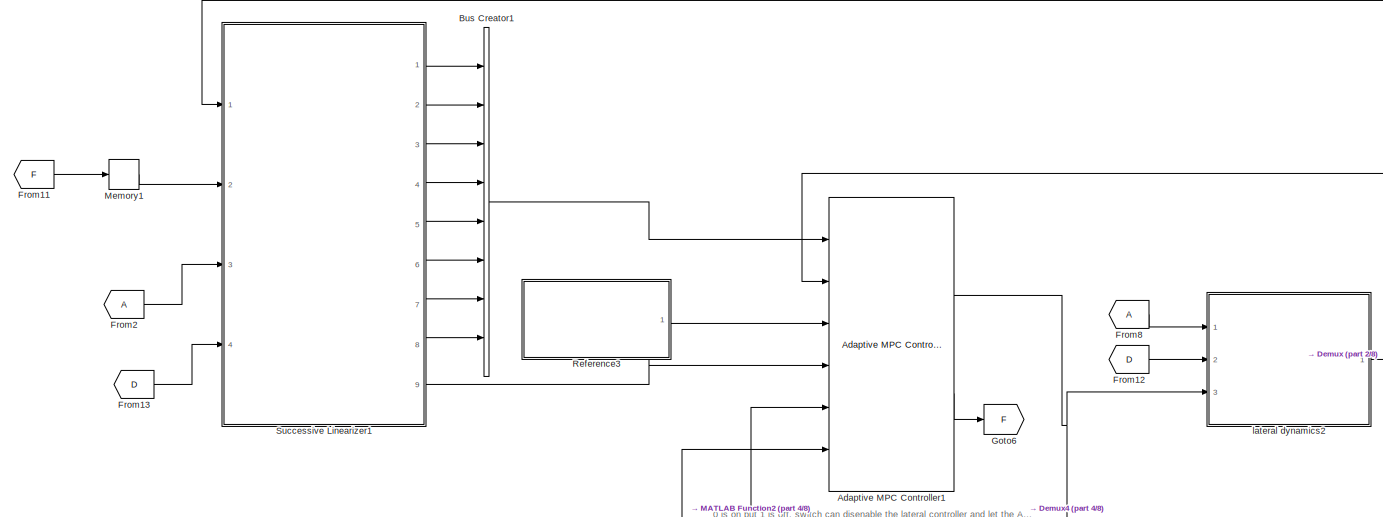
[diagram: root canvas - part 1/8, top left region]
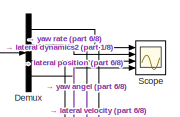
[diagram: root canvas - part 2/8, top center region]
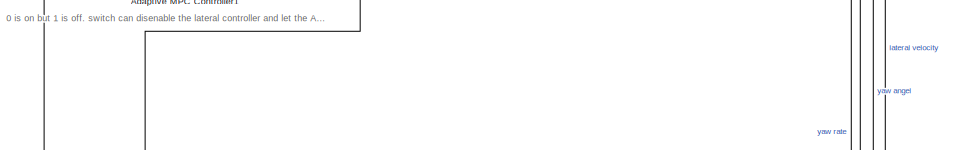
[diagram: root canvas - part 3/8, top center region]
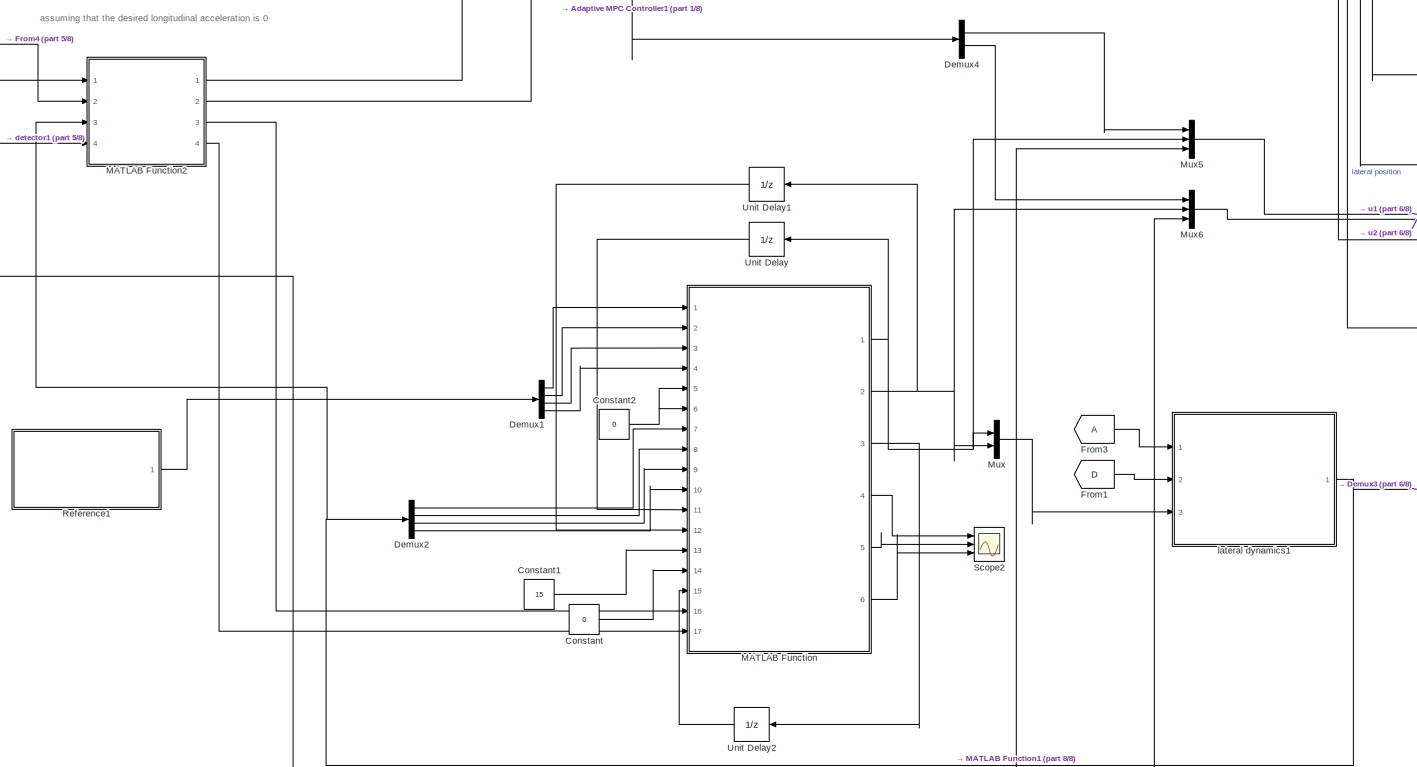
[diagram: root canvas - part 4/8, central region]
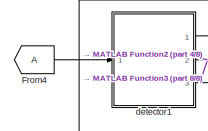
[diagram: root canvas - part 5/8, middle left region]
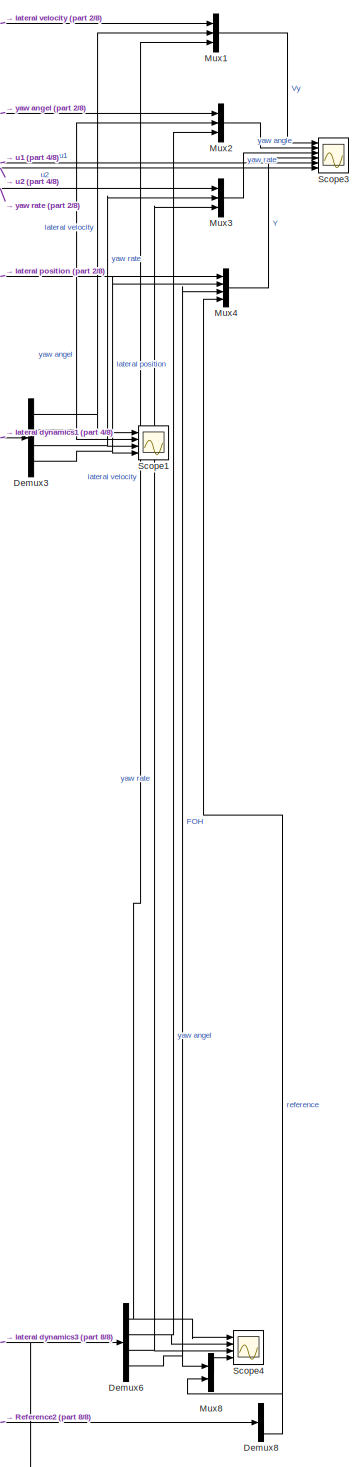
[diagram: root canvas - part 6/8, middle right region]
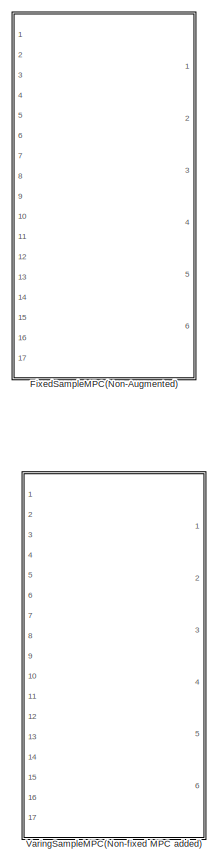
[diagram: root canvas - part 7/8, middle right region]
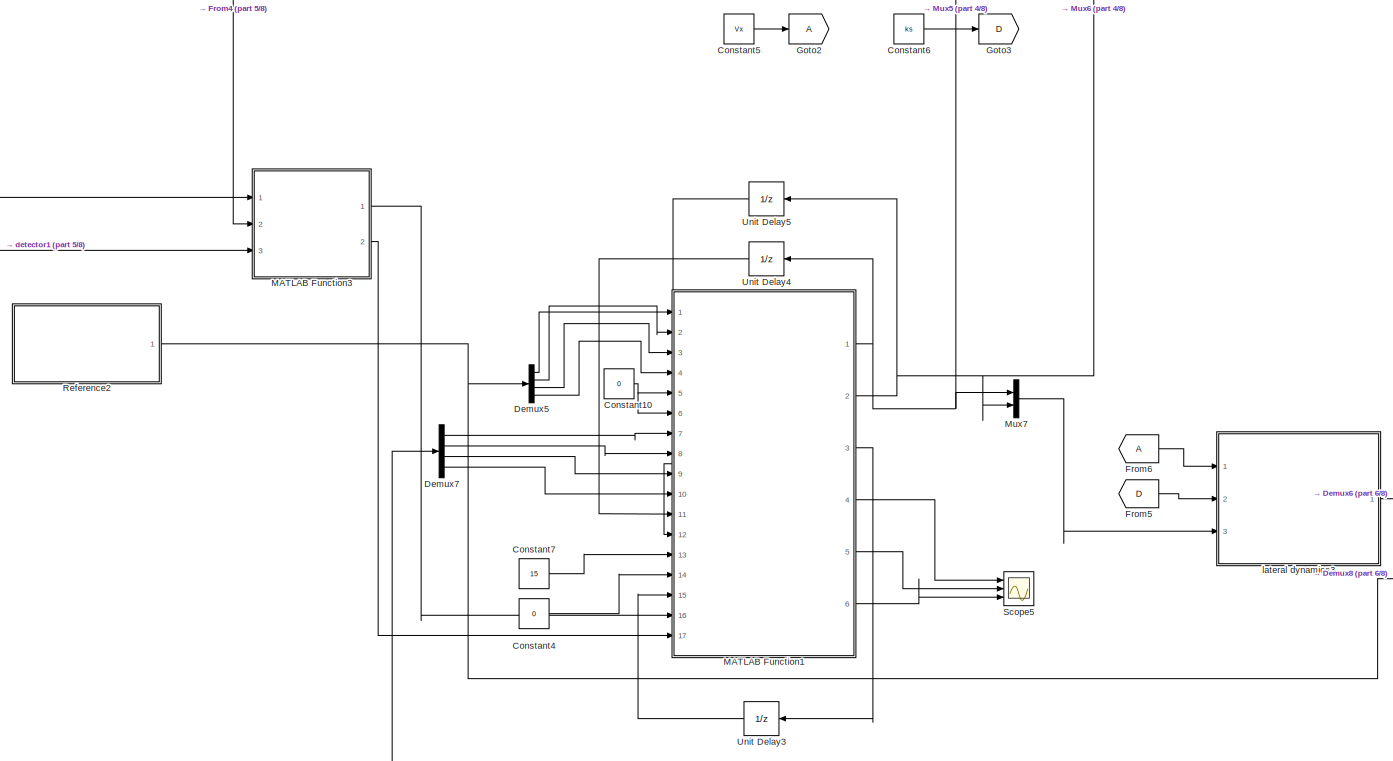
[diagram: root canvas - part 8/8, bottom center region]
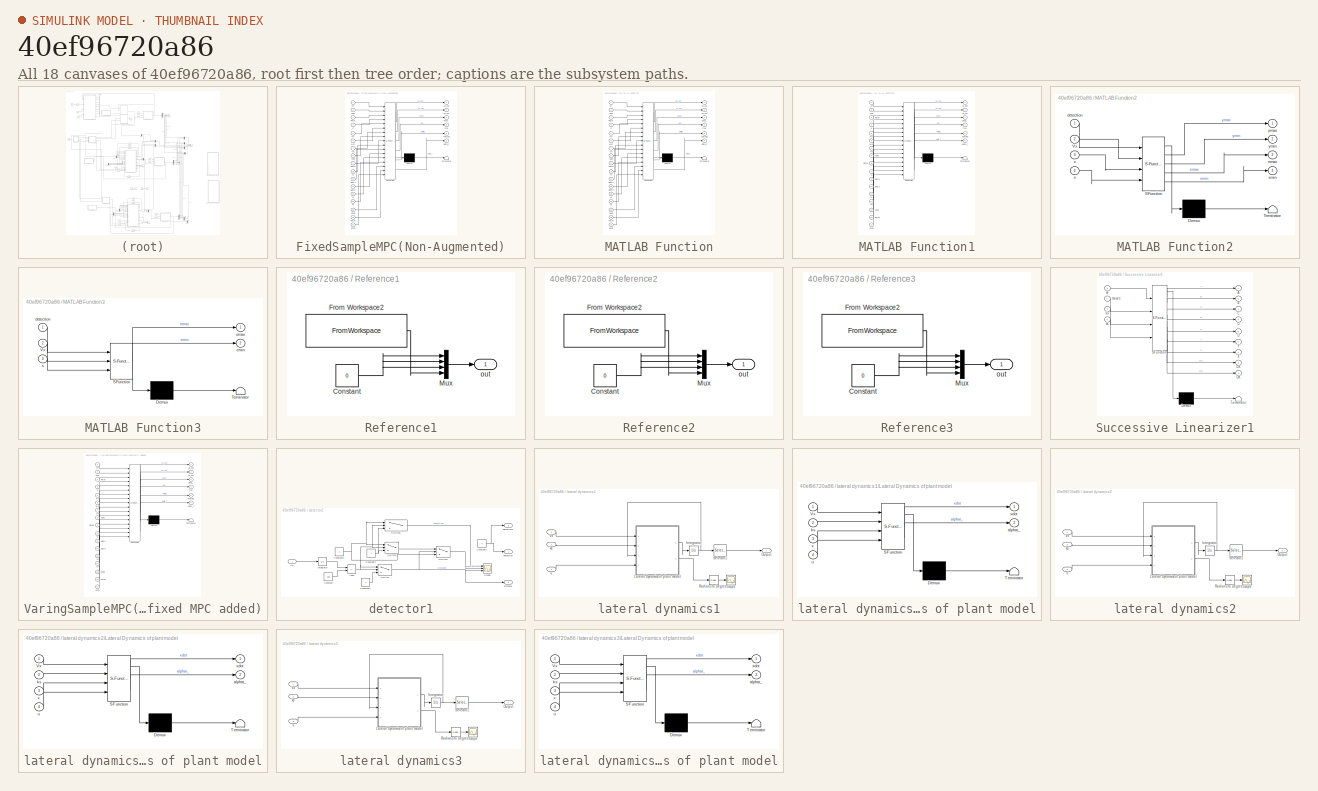
[diagram: thumbnail index - all 18 canvases of the model, root first then tree order]
MODEL slx_40ef96720a86
KIND model
CONFIG AbsTol = auto
CONFIG EnableMultiTasking = off
CONFIG FixedStep = auto
CONFIG MaxStep = auto
CONFIG MinStep = auto
CONFIG RelTol = 1e-3
CONFIG SampleTimeConstraint = Unconstrained
CONFIG SolverName = VariableStepAuto
CONFIG StartTime = 0.0
CONFIG StopTime = 20
BLOCK [Reference] Adaptive MPC Controller1  REF=mpclib/Adaptive MPC Controller  (lib defined in mdl_ae329e0e0455)
  Commented = on
  Ports = [6, 2]
  SCDEnableBlockLinearizationSpecification = on
  SourceBlock = mpclib/Adaptive MPC Controller
  SourceProductBaseCode = MP
  SourceType = Adaptive MPC
BLOCK [BusCreator] Bus Creator1
  Commented = on
  DisplayOption = bar
  InheritFromInputs = on
  Inputs = 8
  Ports = [8, 1]
BLOCK [Constant] Constant
  Value = 0
BLOCK [Constant] Constant1
  Value = 15
BLOCK [Constant] Constant10
  Value = 0
BLOCK [Constant] Constant2
  Value = 0
BLOCK [Constant] Constant4
  Value = 0
BLOCK [Constant] Constant5
  Value = Vx
BLOCK [Constant] Constant6
  Value = ks
BLOCK [Constant] Constant7
  Value = 15
BLOCK [Demux] Demux
  Commented = on
  Ports = [1, 4]
BLOCK [Demux] Demux1
  Ports = [1, 4]
BLOCK [Demux] Demux2
  Ports = [1, 4]
BLOCK [Demux] Demux3
  Ports = [1, 4]
BLOCK [Demux] Demux4
  Outputs = 2
  Ports = [1, 2]
BLOCK [Demux] Demux5
  Ports = [1, 4]
BLOCK [Demux] Demux6
  Ports = [1, 4]
BLOCK [Demux] Demux7
  Ports = [1, 4]
BLOCK [Demux] Demux8
  Ports = [1, 4]
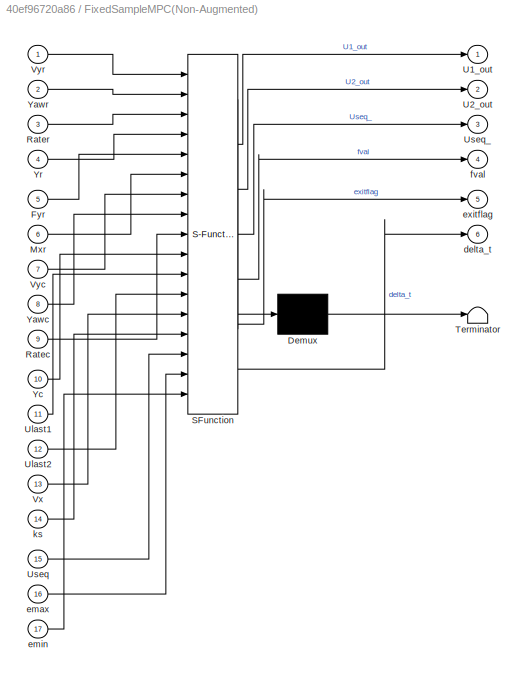
BLOCK [SubSystem] FixedSampleMPC(Non-Augmented)
  Commented = on
  ErrorFcn = Stateflow.Translate.translate
  PermitHierarchicalResolution = ExplicitOnly
  Ports = [17, 6]
  RequestExecContextInheritance = off
  SFBlockType = MATLAB Function
  TreatAsAtomicUnit = on
BLOCK [Demux] FixedSampleMPC(Non-Augmented)/ Demux 
  Outputs = 1
  Ports = [1, 1]
BLOCK [S-Function] FixedSampleMPC(Non-Augmented)/ SFunction 
  EnableBusSupport = on
  FunctionName = sf_sfun
  PortCounts = [17 7]
  Ports = [17, 7]
  SFcnIsStateOwnerBlock = off
  SFunctionDeploymentMode = off
  Tag = Stateflow S-Function 9
BLOCK [Terminator] FixedSampleMPC(Non-Augmented)/ Terminator 
BLOCK [Inport] FixedSampleMPC(Non-Augmented)/Fyr
  Port = 5
BLOCK [Inport] FixedSampleMPC(Non-Augmented)/Mxr
  Port = 6
BLOCK [Inport] FixedSampleMPC(Non-Augmented)/Ratec
  Port = 9
BLOCK [Inport] FixedSampleMPC(Non-Augmented)/Rater
  Port = 3
BLOCK [Outport] FixedSampleMPC(Non-Augmented)/U1_out
BLOCK [Outport] FixedSampleMPC(Non-Augmented)/U2_out
  Port = 2
BLOCK [Inport] FixedSampleMPC(Non-Augmented)/Ulast1
  Port = 11
BLOCK [Inport] FixedSampleMPC(Non-Augmented)/Ulast2
  Port = 12
BLOCK [Inport] FixedSampleMPC(Non-Augmented)/Useq
  Port = 15
BLOCK [Outport] FixedSampleMPC(Non-Augmented)/Useq_
  Port = 3
BLOCK [Inport] FixedSampleMPC(Non-Augmented)/Vx
  Port = 13
BLOCK [Inport] FixedSampleMPC(Non-Augmented)/Vyc
  Port = 7
BLOCK [Inport] FixedSampleMPC(Non-Augmented)/Vyr
BLOCK [Inport] FixedSampleMPC(Non-Augmented)/Yawc
  Port = 8
BLOCK [Inport] FixedSampleMPC(Non-Augmented)/Yawr
  Port = 2
BLOCK [Inport] FixedSampleMPC(Non-Augmented)/Yc
  Port = 10
BLOCK [Inport] FixedSampleMPC(Non-Augmented)/Yr
  Port = 4
BLOCK [Outport] FixedSampleMPC(Non-Augmented)/delta_t
  Port = 6
BLOCK [Inport] FixedSampleMPC(Non-Augmented)/emax
  Port = 16
BLOCK [Inport] FixedSampleMPC(Non-Augmented)/emin
  Port = 17
BLOCK [Outport] FixedSampleMPC(Non-Augmented)/exitflag
  Port = 5
BLOCK [Outport] FixedSampleMPC(Non-Augmented)/fval
  Port = 4
BLOCK [Inport] FixedSampleMPC(Non-Augmented)/ks
  Port = 14
BLOCK [From] From1
  GotoTag = D
BLOCK [From] From11
  Commented = on
  GotoTag = F
BLOCK [From] From12
  Commented = on
  GotoTag = D
BLOCK [From] From13
  Commented = on
  GotoTag = D
BLOCK [From] From2
  Commented = on
BLOCK [From] From3
BLOCK [From] From4
BLOCK [From] From5
  GotoTag = D
BLOCK [From] From6
BLOCK [From] From8
  Commented = on
BLOCK [Goto] Goto2
BLOCK [Goto] Goto3
  GotoTag = D
BLOCK [Goto] Goto6
  Commented = on
  GotoTag = F
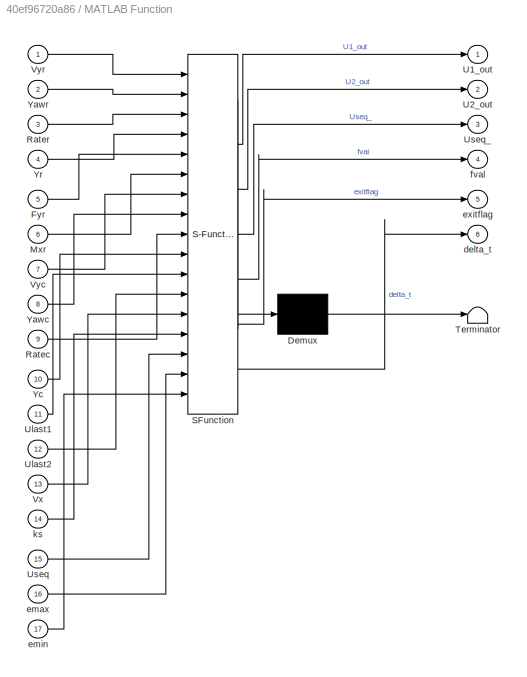
BLOCK [SubSystem] MATLAB Function
  ErrorFcn = Stateflow.Translate.translate
  PermitHierarchicalResolution = ExplicitOnly
  Ports = [17, 6]
  RequestExecContextInheritance = off
  SFBlockType = MATLAB Function
  TreatAsAtomicUnit = on
BLOCK [Demux] MATLAB Function/ Demux 
  Outputs = 1
  Ports = [1, 1]
BLOCK [S-Function] MATLAB Function/ SFunction 
  EnableBusSupport = on
  FunctionName = sf_sfun
  PortCounts = [17 7]
  Ports = [17, 7]
  SFcnIsStateOwnerBlock = off
  SFunctionDeploymentMode = off
  Tag = Stateflow S-Function 1
BLOCK [Terminator] MATLAB Function/ Terminator 
BLOCK [Inport] MATLAB Function/Fyr
  Port = 5
BLOCK [Inport] MATLAB Function/Mxr
  Port = 6
BLOCK [Inport] MATLAB Function/Ratec
  Port = 9
BLOCK [Inport] MATLAB Function/Rater
  Port = 3
BLOCK [Outport] MATLAB Function/U1_out
BLOCK [Outport] MATLAB Function/U2_out
  Port = 2
BLOCK [Inport] MATLAB Function/Ulast1
  Port = 11
BLOCK [Inport] MATLAB Function/Ulast2
  Port = 12
BLOCK [Inport] MATLAB Function/Useq
  Port = 15
BLOCK [Outport] MATLAB Function/Useq_
  Port = 3
BLOCK [Inport] MATLAB Function/Vx
  Port = 13
BLOCK [Inport] MATLAB Function/Vyc
  Port = 7
BLOCK [Inport] MATLAB Function/Vyr
BLOCK [Inport] MATLAB Function/Yawc
  Port = 8
BLOCK [Inport] MATLAB Function/Yawr
  Port = 2
BLOCK [Inport] MATLAB Function/Yc
  Port = 10
BLOCK [Inport] MATLAB Function/Yr
  Port = 4
BLOCK [Outport] MATLAB Function/delta_t
  Port = 6
BLOCK [Inport] MATLAB Function/emax
  Port = 16
BLOCK [Inport] MATLAB Function/emin
  Port = 17
BLOCK [Outport] MATLAB Function/exitflag
  Port = 5
BLOCK [Outport] MATLAB Function/fval
  Port = 4
BLOCK [Inport] MATLAB Function/ks
  Port = 14
BLOCK [SubSystem] MATLAB Function1
  ErrorFcn = Stateflow.Translate.translate
  PermitHierarchicalResolution = ExplicitOnly
  Ports = [17, 6]
  RequestExecContextInheritance = off
  SFBlockType = MATLAB Function
  TreatAsAtomicUnit = on
BLOCK [Demux] MATLAB Function1/ Demux 
  Outputs = 1
  Ports = [1, 1]
BLOCK [S-Function] MATLAB Function1/ SFunction 
  EnableBusSupport = on
  FunctionName = sf_sfun
  PortCounts = [17 7]
  Ports = [17, 7]
  SFcnIsStateOwnerBlock = off
  SFunctionDeploymentMode = off
  Tag = Stateflow S-Function 4
BLOCK [Terminator] MATLAB Function1/ Terminator 
BLOCK [Inport] MATLAB Function1/Fyr
  Port = 5
BLOCK [Inport] MATLAB Function1/Mxr
  Port = 6
BLOCK [Inport] MATLAB Function1/Ratec
  Port = 9
BLOCK [Inport] MATLAB Function1/Rater
  Port = 3
BLOCK [Outport] MATLAB Function1/U1_out
BLOCK [Outport] MATLAB Function1/U2_out
  Port = 2
BLOCK [Inport] MATLAB Function1/Ulast1
  Port = 11
BLOCK [Inport] MATLAB Function1/Ulast2
  Port = 12
BLOCK [Inport] MATLAB Function1/Useq
  Port = 15
BLOCK [Outport] MATLAB Function1/Useq_
  Port = 3
BLOCK [Inport] MATLAB Function1/Vx
  Port = 13
BLOCK [Inport] MATLAB Function1/Vyc
  Port = 7
BLOCK [Inport] MATLAB Function1/Vyr
BLOCK [Inport] MATLAB Function1/Yawc
  Port = 8
BLOCK [Inport] MATLAB Function1/Yawr
  Port = 2
BLOCK [Inport] MATLAB Function1/Yc
  Port = 10
BLOCK [Inport] MATLAB Function1/Yr
  Port = 4
BLOCK [Outport] MATLAB Function1/delta_t
  Port = 6
BLOCK [Inport] MATLAB Function1/emax
  Port = 16
BLOCK [Inport] MATLAB Function1/emin
  Port = 17
BLOCK [Outport] MATLAB Function1/exitflag
  Port = 5
BLOCK [Outport] MATLAB Function1/fval
  Port = 4
BLOCK [Inport] MATLAB Function1/ks
  Port = 14
BLOCK [SubSystem] MATLAB Function2
  ErrorFcn = Stateflow.Translate.translate
  PermitHierarchicalResolution = ExplicitOnly
  Ports = [4, 4]
  RequestExecContextInheritance = off
  SFBlockType = MATLAB Function
  TreatAsAtomicUnit = on
BLOCK [Demux] MATLAB Function2/ Demux 
  Outputs = 1
  Ports = [1, 1]
BLOCK [S-Function] MATLAB Function2/ SFunction 
  EnableBusSupport = on
  FunctionName = sf_sfun
  Parameters = PredictionHorizon,Ts
  PortCounts = [4 5]
  Ports = [4, 5]
  SFcnIsStateOwnerBlock = off
  SFunctionDeploymentMode = off
  Tag = Stateflow S-Function 2
BLOCK [Terminator] MATLAB Function2/ Terminator 
BLOCK [Inport] MATLAB Function2/Vx
  Port = 2
BLOCK [Inport] MATLAB Function2/detection
BLOCK [Outport] MATLAB Function2/emax
  Port = 3
BLOCK [Outport] MATLAB Function2/emin
  Port = 4
BLOCK [Inport] MATLAB Function2/s
  Port = 4
BLOCK [Inport] MATLAB Function2/x
  Port = 3
BLOCK [Outport] MATLAB Function2/ymax
BLOCK [Outport] MATLAB Function2/ymin
  Port = 2
BLOCK [SubSystem] MATLAB Function3
  ErrorFcn = Stateflow.Translate.translate
  PermitHierarchicalResolution = ExplicitOnly
  Ports = [3, 2]
  RequestExecContextInheritance = off
  SFBlockType = MATLAB Function
  TreatAsAtomicUnit = on
BLOCK [Demux] MATLAB Function3/ Demux 
  Outputs = 1
  Ports = [1, 1]
BLOCK [S-Function] MATLAB Function3/ SFunction 
  EnableBusSupport = on
  FunctionName = sf_sfun
  PortCounts = [3 3]
  Ports = [3, 3]
  SFcnIsStateOwnerBlock = off
  SFunctionDeploymentMode = off
  Tag = Stateflow S-Function 10
BLOCK [Terminator] MATLAB Function3/ Terminator 
BLOCK [Inport] MATLAB Function3/Vx
  Port = 2
BLOCK [Inport] MATLAB Function3/detection
BLOCK [Outport] MATLAB Function3/emax
BLOCK [Outport] MATLAB Function3/emin
  Port = 2
BLOCK [Inport] MATLAB Function3/s
  Port = 3
BLOCK [Memory] Memory1
  Commented = on
BLOCK [Mux] Mux
  DisplayOption = bar
  Inputs = 2
  Ports = [2, 1]
BLOCK [Mux] Mux1
  DisplayOption = bar
  Inputs = 3
  Ports = [3, 1]
BLOCK [Mux] Mux2
  DisplayOption = bar
  Inputs = 3
  Ports = [3, 1]
BLOCK [Mux] Mux3
  DisplayOption = bar
  Inputs = 3
  Ports = [3, 1]
BLOCK [Mux] Mux4
  DisplayOption = bar
  Ports = [4, 1]
BLOCK [Mux] Mux5
  DisplayOption = bar
  Inputs = 3
  Ports = [3, 1]
BLOCK [Mux] Mux6
  DisplayOption = bar
  Inputs = 3
  Ports = [3, 1]
BLOCK [Mux] Mux7
  DisplayOption = bar
  Inputs = 2
  Ports = [2, 1]
BLOCK [Mux] Mux8
  DisplayOption = bar
  Inputs = 2
  Ports = [2, 1]
BLOCK [SubSystem] Reference1
  AncestorBlock = Meldas_library/Reference
  Ports = [0, 1]
  RequestExecContextInheritance = off
BLOCK [Constant] Reference1/Constant
  Value = 0
BLOCK [FromWorkspace] Reference1/From Workspace2
  SampleTime = 0.1
  VariableName = [t', posRef(:,2)]
BLOCK [Mux] Reference1/Mux
  DisplayOption = bar
  Ports = [4, 1]
BLOCK [Outport] Reference1/out
  VectorParamsAs1DForOutWhenUnconnected = off
BLOCK [SubSystem] Reference2
  AncestorBlock = Meldas_library/Reference
  Ports = [0, 1]
  RequestExecContextInheritance = off
BLOCK [Constant] Reference2/Constant
  Value = 0
BLOCK [FromWorkspace] Reference2/From Workspace2
  SampleTime = 0.1
  VariableName = [t', posRef(:,2)]
BLOCK [Mux] Reference2/Mux
  DisplayOption = bar
  Ports = [4, 1]
BLOCK [Outport] Reference2/out
  VectorParamsAs1DForOutWhenUnconnected = off
BLOCK [SubSystem] Reference3
  AncestorBlock = Meldas_library/Reference
  Commented = on
  Ports = [0, 1]
  RequestExecContextInheritance = off
BLOCK [Constant] Reference3/Constant
  Value = 0
BLOCK [FromWorkspace] Reference3/From Workspace2
  SampleTime = 0.1
  VariableName = [t', posRef(:,2)]
BLOCK [Mux] Reference3/Mux
  DisplayOption = bar
  Ports = [4, 1]
BLOCK [Outport] Reference3/out
  VectorParamsAs1DForOutWhenUnconnected = off
BLOCK [Scope] Scope
  Commented = on
  Floating = off
  NumInputPorts = 4
  Ports = [4]
  ScopeSpecificationString = Simulink.scopes.TimeScopeBlockCfg('CurrentConfiguration', extmgr.ConfigurationSet(extmgr.Configuration('Core','General UI',true),extmgr.Configuration('Core','Source UI',true),extmgr.Configuration('Sources','WiredSimulink',true),extmgr.Configuration('Visuals','Time Domain',true,'SerializedDisplays',{struct('MinYLimReal','-0.00383','MaxYLimReal','0.00479','YLabelReal','','MinYLimMag','0.00000','MaxY...<+3440ch>
BLOCK [Scope] Scope1
  Floating = off
  NumInputPorts = 4
  Ports = [4]
  ScopeSpecificationString = Simulink.scopes.TimeScopeBlockCfg('CurrentConfiguration', extmgr.ConfigurationSet(extmgr.Configuration('Core','General UI',true),extmgr.Configuration('Core','Source UI',true),extmgr.Configuration('Sources','WiredSimulink',true,'DataLoggingVariableName','ScopeData1'),extmgr.Configuration('Visuals','Time Domain',true,'SerializedDisplays',{struct('MinYLimReal','-0.01164','MaxYLimReal','0.01519','YLab...<+3476ch>
BLOCK [Scope] Scope2
  Floating = off
  NumInputPorts = 3
  Ports = [3]
  ScopeSpecificationString = Simulink.scopes.TimeScopeBlockCfg('CurrentConfiguration', extmgr.ConfigurationSet(extmgr.Configuration('Core','General UI',true),extmgr.Configuration('Core','Source UI',true),extmgr.Configuration('Sources','WiredSimulink',true,'DataLoggingVariableName','ScopeData2'),extmgr.Configuration('Visuals','Time Domain',true,'SerializedDisplays',{struct('MinYLimReal','-0.17216','MaxYLimReal','0.01913','YLab...<+2788ch>
BLOCK [Scope] Scope3
  Floating = off
  NumInputPorts = 6
  Ports = [6]
  ScopeSpecificationString = Simulink.scopes.TimeScopeBlockCfg('CurrentConfiguration', extmgr.ConfigurationSet(extmgr.Configuration('Core','General UI',true),extmgr.Configuration('Core','Source UI',true),extmgr.Configuration('Sources','WiredSimulink',true,'DataLoggingVariableName','ScopeData3'),extmgr.Configuration('Visuals','Time Domain',true,'SerializedDisplays',{struct('MinYLimReal','-0.01164','MaxYLimReal','0.01519','YLab...<+5747ch>
BLOCK [Scope] Scope4
  Floating = off
  NumInputPorts = 4
  Ports = [4]
  ScopeSpecificationString = Simulink.scopes.TimeScopeBlockCfg('CurrentConfiguration', extmgr.ConfigurationSet(extmgr.Configuration('Core','General UI',true),extmgr.Configuration('Core','Source UI',true),extmgr.Configuration('Sources','WiredSimulink',true,'DataLoggingVariableName','ScopeData1'),extmgr.Configuration('Visuals','Time Domain',true,'SerializedDisplays',{struct('MinYLimReal','-0.00694','MaxYLimReal','0.01075','YLab...<+3448ch>
BLOCK [Scope] Scope5
  Floating = off
  NumInputPorts = 3
  Ports = [3]
  ScopeSpecificationString = Simulink.scopes.TimeScopeBlockCfg('CurrentConfiguration', extmgr.ConfigurationSet(extmgr.Configuration('Core','General UI',true),extmgr.Configuration('Core','Source UI',true),extmgr.Configuration('Sources','WiredSimulink',true,'DataLoggingVariableName','ScopeData2'),extmgr.Configuration('Visuals','Time Domain',true,'SerializedDisplays',{struct('MinYLimReal','-0.94011','MaxYLimReal','0.10446','YLab...<+2790ch>
BLOCK [SubSystem] Successive Linearizer1
  Commented = on
  ErrorFcn = Stateflow.Translate.translate
  PermitHierarchicalResolution = ExplicitOnly
  Ports = [4, 9]
  RequestExecContextInheritance = off
  SFBlockType = MATLAB Function
  TreatAsAtomicUnit = on
BLOCK [Demux] Successive Linearizer1/ Demux 
  Outputs = 1
  Ports = [1, 1]
BLOCK [S-Function] Successive Linearizer1/ SFunction 
  EnableBusSupport = on
  FunctionName = sf_sfun
  Parameters = PredictionHorizon,Ts
  PortCounts = [4 10]
  Ports = [4, 10]
  SFcnIsStateOwnerBlock = off
  SFunctionDeploymentMode = off
  Tag = Stateflow S-Function 5
BLOCK [Terminator] Successive Linearizer1/ Terminator 
BLOCK [Outport] Successive Linearizer1/A
BLOCK [Outport] Successive Linearizer1/B
  Port = 2
BLOCK [Outport] Successive Linearizer1/C
  Port = 3
BLOCK [Outport] Successive Linearizer1/D
  Port = 4
BLOCK [Outport] Successive Linearizer1/DK
  Port = 9
BLOCK [Outport] Successive Linearizer1/DX
  Port = 8
BLOCK [Outport] Successive Linearizer1/U
  Port = 5
BLOCK [Inport] Successive Linearizer1/Vx
  Port = 3
BLOCK [Outport] Successive Linearizer1/X
  Port = 7
BLOCK [Outport] Successive Linearizer1/Y
  Port = 6
BLOCK [Inport] Successive Linearizer1/ks
  Port = 4
BLOCK [Inport] Successive Linearizer1/moves
  Port = 2
BLOCK [Inport] Successive Linearizer1/xk
BLOCK [UnitDelay] Unit Delay
  HasFrameUpgradeWarning = on
  SampleTime = -1
BLOCK [UnitDelay] Unit Delay1
  HasFrameUpgradeWarning = on
  SampleTime = -1
BLOCK [UnitDelay] Unit Delay2
  HasFrameUpgradeWarning = on
  InitialCondition = zeros(61,2)
  SampleTime = -1
BLOCK [UnitDelay] Unit Delay3
  HasFrameUpgradeWarning = on
  InitialCondition = zeros(71,2)
  SampleTime = -1
BLOCK [UnitDelay] Unit Delay4
  HasFrameUpgradeWarning = on
  SampleTime = -1
BLOCK [UnitDelay] Unit Delay5
  HasFrameUpgradeWarning = on
  SampleTime = -1
BLOCK [SubSystem] VaringSampleMPC(Non-fixed MPC added)
  Commented = on
  ErrorFcn = Stateflow.Translate.translate
  PermitHierarchicalResolution = ExplicitOnly
  Ports = [17, 6]
  RequestExecContextInheritance = off
  SFBlockType = MATLAB Function
  TreatAsAtomicUnit = on
BLOCK [Demux] VaringSampleMPC(Non-fixed MPC added)/ Demux 
  Outputs = 1
  Ports = [1, 1]
BLOCK [S-Function] VaringSampleMPC(Non-fixed MPC added)/ SFunction 
  EnableBusSupport = on
  FunctionName = sf_sfun
  PortCounts = [17 7]
  Ports = [17, 7]
  SFcnIsStateOwnerBlock = off
  SFunctionDeploymentMode = off
  Tag = Stateflow S-Function 8
BLOCK [Terminator] VaringSampleMPC(Non-fixed MPC added)/ Terminator 
BLOCK [Inport] VaringSampleMPC(Non-fixed MPC added)/Fyr
  Port = 5
BLOCK [Inport] VaringSampleMPC(Non-fixed MPC added)/Mxr
  Port = 6
BLOCK [Inport] VaringSampleMPC(Non-fixed MPC added)/Ratec
  Port = 9
BLOCK [Inport] VaringSampleMPC(Non-fixed MPC added)/Rater
  Port = 3
BLOCK [Outport] VaringSampleMPC(Non-fixed MPC added)/U1_out
BLOCK [Outport] VaringSampleMPC(Non-fixed MPC added)/U2_out
  Port = 2
BLOCK [Inport] VaringSampleMPC(Non-fixed MPC added)/Ulast1
  Port = 11
BLOCK [Inport] VaringSampleMPC(Non-fixed MPC added)/Ulast2
  Port = 12
BLOCK [Inport] VaringSampleMPC(Non-fixed MPC added)/Useq
  Port = 15
BLOCK [Outport] VaringSampleMPC(Non-fixed MPC added)/Useq_
  Port = 3
BLOCK [Inport] VaringSampleMPC(Non-fixed MPC added)/Vx
  Port = 13
BLOCK [Inport] VaringSampleMPC(Non-fixed MPC added)/Vyc
  Port = 7
BLOCK [Inport] VaringSampleMPC(Non-fixed MPC added)/Vyr
BLOCK [Inport] VaringSampleMPC(Non-fixed MPC added)/Yawc
  Port = 8
BLOCK [Inport] VaringSampleMPC(Non-fixed MPC added)/Yawr
  Port = 2
BLOCK [Inport] VaringSampleMPC(Non-fixed MPC added)/Yc
  Port = 10
BLOCK [Inport] VaringSampleMPC(Non-fixed MPC added)/Yr
  Port = 4
BLOCK [Outport] VaringSampleMPC(Non-fixed MPC added)/delta_t
  Port = 6
BLOCK [Inport] VaringSampleMPC(Non-fixed MPC added)/emax
  Port = 16
BLOCK [Inport] VaringSampleMPC(Non-fixed MPC added)/emin
  Port = 17
BLOCK [Outport] VaringSampleMPC(Non-fixed MPC added)/exitflag
  Port = 5
BLOCK [Outport] VaringSampleMPC(Non-fixed MPC added)/fval
  Port = 4
BLOCK [Inport] VaringSampleMPC(Non-fixed MPC added)/ks
  Port = 14
BLOCK [SubSystem] detector1
  Ports = [1, 3]
  RequestExecContextInheritance = off
BLOCK [Sum] detector1/Add1
  IconShape = rectangular
  Inputs = -+
  Ports = [2, 1]
BLOCK [Constant] detector1/Constant
  Value = 105
BLOCK [Constant] detector1/Constant1
  Value = 0
BLOCK [Constant] detector1/Constant2
  Value = -1
BLOCK [Constant] detector1/Constant4
  Value = 0
BLOCK [Constant] detector1/Constant7
BLOCK [Integrator] detector1/Integrator
  Ports = [1, 1]
BLOCK [Scope] detector1/Scope
  Floating = off
  NumInputPorts = 3
  Ports = [3]
  ScopeSpecificationString = Simulink.scopes.TimeScopeBlockCfg('CurrentConfiguration', extmgr.ConfigurationSet(extmgr.Configuration('Core','General UI',true),extmgr.Configuration('Core','Source UI',true),extmgr.Configuration('Sources','WiredSimulink',true),extmgr.Configuration('Visuals','Time Domain',true,'SerializedDisplays',{struct('MinYLimReal','-0.125','MaxYLimReal','1.125','YLabelReal','','MinYLimMag','0.00000','MaxYLimM...<+1985ch>
BLOCK [Switch] detector1/Switch
  Criteria = u2 > Threshold
  InputSameDT = off
  SaturateOnIntegerOverflow = off
BLOCK [Switch] detector1/Switch1
  Criteria = u2 > Threshold
  InputSameDT = off
  SaturateOnIntegerOverflow = off
  Threshold = 45
BLOCK [Switch] detector1/Switch2
  Criteria = u2 > Threshold
  InputSameDT = off
  SaturateOnIntegerOverflow = off
BLOCK [Switch] detector1/Switch3
  Criteria = u2 > Threshold
  InputSameDT = off
  SaturateOnIntegerOverflow = off
  Threshold = 81.75
BLOCK [Inport] detector1/Vx
BLOCK [Outport] detector1/detection
BLOCK [Outport] detector1/detection1
  Port = 3
BLOCK [Outport] detector1/distance
  Port = 2
BLOCK [SubSystem] lateral dynamics1
  Ports = [3, 1]
  RequestExecContextInheritance = off
BLOCK [Integrator] lateral dynamics1/Integrator
  Ports = [1, 1]
BLOCK [SubSystem] lateral dynamics1/Lateral Dynamics of plant model
  ErrorFcn = Stateflow.Translate.translate
  PermitHierarchicalResolution = ExplicitOnly
  Ports = [4, 2]
  RequestExecContextInheritance = off
  SFBlockType = MATLAB Function
  TreatAsAtomicUnit = on
BLOCK [Demux] lateral dynamics1/Lateral Dynamics of plant model/ Demux 
  Outputs = 1
  Ports = [1, 1]
BLOCK [S-Function] lateral dynamics1/Lateral Dynamics of plant model/ SFunction 
  EnableBusSupport = on
  FunctionName = sf_sfun
  PortCounts = [4 3]
  Ports = [4, 3]
  SFcnIsStateOwnerBlock = off
  SFunctionDeploymentMode = off
  Tag = Stateflow S-Function 3
BLOCK [Terminator] lateral dynamics1/Lateral Dynamics of plant model/ Terminator 
BLOCK [Inport] lateral dynamics1/Lateral Dynamics of plant model/Vx
BLOCK [Outport] lateral dynamics1/Lateral Dynamics of plant model/alphar_
  Port = 2
BLOCK [Inport] lateral dynamics1/Lateral Dynamics of plant model/ks
  Port = 2
BLOCK [Inport] lateral dynamics1/Lateral Dynamics of plant model/u
  Port = 4
BLOCK [Inport] lateral dynamics1/Lateral Dynamics of plant model/x
  Port = 3
BLOCK [Outport] lateral dynamics1/Lateral Dynamics of plant model/xdot
BLOCK [Outport] lateral dynamics1/Output
BLOCK [Reference] lateral dynamics1/Radians to Degrees  REF=simulink_extras/Transformations/Radians
to Degrees
  Ports = [1, 1]
  SourceBlock = simulink_extras/Transformations/Radians\nto Degrees
  SourceProductBaseCode = SL
  SourceType = RadiansToDegrees
BLOCK [Scope] lateral dynamics1/Scope
  Floating = off
  NumInputPorts = 1
  Ports = [1]
  ScopeSpecificationString = Simulink.scopes.TimeScopeBlockCfg('CurrentConfiguration', extmgr.ConfigurationSet(extmgr.Configuration('Core','General UI',true),extmgr.Configuration('Core','Source UI',true),extmgr.Configuration('Sources','WiredSimulink',true,'DataLoggingVariableName','ScopeData1'),extmgr.Configuration('Visuals','Time Domain',true,'SerializedDisplays',{struct('MinYLimReal','-0.89178','MaxYLimReal','0.67452','YLab...<+1377ch>  <repeated x3 — deduplicated; at blocks: Scope>
BLOCK [Selector] lateral dynamics1/Selector1
  IndexOptions = Index vector (dialog)
  Indices = [1 2 3 4]
  InputPortWidth = 4
  OutputSizes = 1
  Ports = [1, 1]
BLOCK [Inport] lateral dynamics1/Vx
BLOCK [Inport] lateral dynamics1/ks
  Port = 2
BLOCK [Inport] lateral dynamics1/u
  Port = 3
BLOCK [SubSystem] lateral dynamics2
  Commented = on
  Ports = [3, 1]
  RequestExecContextInheritance = off
BLOCK [Integrator] lateral dynamics2/Integrator
  Ports = [1, 1]
BLOCK [SubSystem] lateral dynamics2/Lateral Dynamics of plant model
  ErrorFcn = Stateflow.Translate.translate
  PermitHierarchicalResolution = ExplicitOnly
  Ports = [4, 2]
  RequestExecContextInheritance = off
  SFBlockType = MATLAB Function
  TreatAsAtomicUnit = on
BLOCK [Demux] lateral dynamics2/Lateral Dynamics of plant model/ Demux 
  Outputs = 1
  Ports = [1, 1]
BLOCK [S-Function] lateral dynamics2/Lateral Dynamics of plant model/ SFunction 
  EnableBusSupport = on
  FunctionName = sf_sfun
  PortCounts = [4 3]
  Ports = [4, 3]
  SFcnIsStateOwnerBlock = off
  SFunctionDeploymentMode = off
  Tag = Stateflow S-Function 6
BLOCK [Terminator] lateral dynamics2/Lateral Dynamics of plant model/ Terminator 
BLOCK [Inport] lateral dynamics2/Lateral Dynamics of plant model/Vx
BLOCK [Outport] lateral dynamics2/Lateral Dynamics of plant model/alphar_
  Port = 2
BLOCK [Inport] lateral dynamics2/Lateral Dynamics of plant model/ks
  Port = 2
BLOCK [Inport] lateral dynamics2/Lateral Dynamics of plant model/u
  Port = 4
BLOCK [Inport] lateral dynamics2/Lateral Dynamics of plant model/x
  Port = 3
BLOCK [Outport] lateral dynamics2/Lateral Dynamics of plant model/xdot
BLOCK [Outport] lateral dynamics2/Output
BLOCK [Reference] lateral dynamics2/Radians to Degrees  REF=simulink_extras/Transformations/Radians
to Degrees
  Ports = [1, 1]
  SourceBlock = simulink_extras/Transformations/Radians\nto Degrees
  SourceProductBaseCode = SL
  SourceType = RadiansToDegrees
BLOCK [Scope] lateral dynamics2/Scope
  Floating = off
  NumInputPorts = 1
  Ports = [1]
BLOCK [Selector] lateral dynamics2/Selector1
  IndexOptions = Index vector (dialog)
  Indices = [1 2 3 4]
  InputPortWidth = 4
  OutputSizes = 1
  Ports = [1, 1]
BLOCK [Inport] lateral dynamics2/Vx
BLOCK [Inport] lateral dynamics2/ks
  Port = 2
BLOCK [Inport] lateral dynamics2/u
  Port = 3
BLOCK [SubSystem] lateral dynamics3
  Ports = [3, 1]
  RequestExecContextInheritance = off
BLOCK [Integrator] lateral dynamics3/Integrator
  Ports = [1, 1]
BLOCK [SubSystem] lateral dynamics3/Lateral Dynamics of plant model
  ErrorFcn = Stateflow.Translate.translate
  PermitHierarchicalResolution = ExplicitOnly
  Ports = [4, 2]
  RequestExecContextInheritance = off
  SFBlockType = MATLAB Function
  TreatAsAtomicUnit = on
BLOCK [Demux] lateral dynamics3/Lateral Dynamics of plant model/ Demux 
  Outputs = 1
  Ports = [1, 1]
BLOCK [S-Function] lateral dynamics3/Lateral Dynamics of plant model/ SFunction 
  EnableBusSupport = on
  FunctionName = sf_sfun
  PortCounts = [4 3]
  Ports = [4, 3]
  SFcnIsStateOwnerBlock = off
  SFunctionDeploymentMode = off
  Tag = Stateflow S-Function 7
BLOCK [Terminator] lateral dynamics3/Lateral Dynamics of plant model/ Terminator 
BLOCK [Inport] lateral dynamics3/Lateral Dynamics of plant model/Vx
BLOCK [Outport] lateral dynamics3/Lateral Dynamics of plant model/alphar_
  Port = 2
BLOCK [Inport] lateral dynamics3/Lateral Dynamics of plant model/ks
  Port = 2
BLOCK [Inport] lateral dynamics3/Lateral Dynamics of plant model/u
  Port = 4
BLOCK [Inport] lateral dynamics3/Lateral Dynamics of plant model/x
  Port = 3
BLOCK [Outport] lateral dynamics3/Lateral Dynamics of plant model/xdot
BLOCK [Outport] lateral dynamics3/Output
BLOCK [Reference] lateral dynamics3/Radians to Degrees  REF=simulink_extras/Transformations/Radians
to Degrees
  Ports = [1, 1]
  SourceBlock = simulink_extras/Transformations/Radians\nto Degrees
  SourceProductBaseCode = SL
  SourceType = RadiansToDegrees
BLOCK [Scope] lateral dynamics3/Scope
  Floating = off
  NumInputPorts = 1
  Ports = [1]
BLOCK [Selector] lateral dynamics3/Selector1
  IndexOptions = Index vector (dialog)
  Indices = [1 2 3 4]
  InputPortWidth = 4
  OutputSizes = 1
  Ports = [1, 1]
BLOCK [Inport] lateral dynamics3/Vx
BLOCK [Inport] lateral dynamics3/ks
  Port = 2
BLOCK [Inport] lateral dynamics3/u
  Port = 3
ANNOTATION (root): 0 is on but 1 is off. switch can disenable the lateral controller and let the ACC control its back to the centerline
ANNOTATION (root): assuming that the desired longitudinal acceleration is 0
NET Adaptive MPC Controller1:1 -> Demux4:1, lateral dynamics2:3
LINE Adaptive MPC Controller1:2 -> Goto6:1
LINE Bus Creator1:1 -> Adaptive MPC Controller1:1
NET Constant10:1 -> MATLAB Function1:5, MATLAB Function1:6
LINE Constant1:1 -> MATLAB Function:13
NET Constant2:1 -> MATLAB Function:5, MATLAB Function:6
LINE Constant4:1 -> MATLAB Function1:14
LINE Constant5:1 -> Goto2:1
LINE Constant6:1 -> Goto3:1
LINE Constant7:1 -> MATLAB Function1:13
LINE Constant:1 -> MATLAB Function:14
LINE Demux1:1 -> MATLAB Function:1
LINE Demux1:2 -> MATLAB Function:2
LINE Demux1:3 -> MATLAB Function:3
LINE Demux1:4 -> MATLAB Function:4
LINE Demux2:1 -> MATLAB Function:7
LINE Demux2:2 -> MATLAB Function:8
LINE Demux2:3 -> MATLAB Function:9
LINE Demux2:4 -> MATLAB Function:10
NET Demux3:1 -> Mux1:2, Scope1:1
NET Demux3:2 -> Mux2:2, Scope1:2
NET Demux3:3 -> Mux3:2, Scope1:3
NET Demux3:4 -> Mux4:2, Scope1:4
LINE Demux4:1 -> Mux5:1
LINE Demux4:2 -> Mux6:1
LINE Demux5:1 -> MATLAB Function1:1
LINE Demux5:2 -> MATLAB Function1:2
LINE Demux5:3 -> MATLAB Function1:3
LINE Demux5:4 -> MATLAB Function1:4
NET Demux6:1 -> Mux1:3, Scope4:1
NET Demux6:2 -> Mux2:3, Scope4:2
NET Demux6:3 -> Mux3:3, Scope4:3
NET Demux6:4 -> Mux4:3, Mux8:1
LINE Demux7:1 -> MATLAB Function1:7
LINE Demux7:2 -> MATLAB Function1:8
LINE Demux7:3 -> MATLAB Function1:9
LINE Demux7:4 -> MATLAB Function1:10
NET Demux8:4 -> Mux4:4, Mux8:2
NET Demux:1 -> Mux1:1, Scope:1
NET Demux:2 -> Mux2:1, Scope:2
NET Demux:3 -> Mux3:1, Scope:3
NET Demux:4 -> Mux4:1, Scope:4
LINE From11:1 -> Memory1:1
LINE From12:1 -> lateral dynamics2:2
LINE From13:1 -> Successive Linearizer1:4
LINE From1:1 -> lateral dynamics1:2
LINE From2:1 -> Successive Linearizer1:3
LINE From3:1 -> lateral dynamics1:1
NET From4:1 -> MATLAB Function2:2, MATLAB Function3:2, detector1:1
LINE From5:1 -> lateral dynamics3:2
LINE From6:1 -> lateral dynamics3:1
LINE From8:1 -> lateral dynamics2:1
NET MATLAB Function1:1 -> Mux5:3, Mux7:1, Unit Delay4:1
NET MATLAB Function1:2 -> Mux6:3, Mux7:2, Unit Delay5:1
LINE MATLAB Function1:3 -> Unit Delay3:1
LINE MATLAB Function1:4 -> Scope5:1
LINE MATLAB Function1:5 -> Scope5:2
LINE MATLAB Function1:6 -> Scope5:3
LINE MATLAB Function2:1 -> Adaptive MPC Controller1:6
LINE MATLAB Function2:2 -> Adaptive MPC Controller1:5
LINE MATLAB Function2:3 -> MATLAB Function:16
LINE MATLAB Function2:4 -> MATLAB Function:17
LINE MATLAB Function3:1 -> MATLAB Function1:16
LINE MATLAB Function3:2 -> MATLAB Function1:17
NET MATLAB Function:1 -> Mux5:2, Mux:1, Unit Delay:1
NET MATLAB Function:2 -> Mux6:2, Mux:2, Unit Delay1:1
LINE MATLAB Function:3 -> Unit Delay2:1
LINE MATLAB Function:4 -> Scope2:1
LINE MATLAB Function:5 -> Scope2:2
LINE MATLAB Function:6 -> Scope2:3
LINE Memory1:1 -> Successive Linearizer1:2
LINE Mux1:1 -> Scope3:1
LINE Mux2:1 -> Scope3:2
LINE Mux3:1 -> Scope3:3
LINE Mux4:1 -> Scope3:4
LINE Mux5:1 -> Scope3:5
LINE Mux6:1 -> Scope3:6
LINE Mux7:1 -> lateral dynamics3:3
LINE Mux8:1 -> Scope4:4
LINE Mux:1 -> lateral dynamics1:3
LINE Reference1:1 -> Demux1:1
NET Reference2:1 -> Demux5:1, Demux8:1
LINE Reference3:1 -> Adaptive MPC Controller1:3
LINE Successive Linearizer1:1 -> Bus Creator1:1
LINE Successive Linearizer1:2 -> Bus Creator1:2
LINE Successive Linearizer1:3 -> Bus Creator1:3
LINE Successive Linearizer1:4 -> Bus Creator1:4
LINE Successive Linearizer1:5 -> Bus Creator1:5
LINE Successive Linearizer1:6 -> Bus Creator1:6
LINE Successive Linearizer1:7 -> Bus Creator1:7
LINE Successive Linearizer1:8 -> Bus Creator1:8
LINE Successive Linearizer1:9 -> Adaptive MPC Controller1:4
LINE Unit Delay1:1 -> MATLAB Function:12
LINE Unit Delay2:1 -> MATLAB Function:15
LINE Unit Delay3:1 -> MATLAB Function1:15
LINE Unit Delay4:1 -> MATLAB Function1:11
LINE Unit Delay5:1 -> MATLAB Function1:12
LINE Unit Delay:1 -> MATLAB Function:11
NET detector1/Add1:1 -> detector1/Switch1:2, detector1/Switch3:2, detector1/Switch:1, detector1/Switch:2
NET detector1/Constant1:1 -> detector1/detection1:1, detector1/detection:1
LINE detector1/Constant2:1 -> detector1/Switch:3
NET detector1/Constant4:1 -> detector1/Switch1:1, detector1/Switch2:3, detector1/Switch3:1
NET detector1/Constant7:1 -> detector1/Switch1:3, detector1/Switch3:3
LINE detector1/Constant:1 -> detector1/Add1:2
LINE detector1/Integrator:1 -> detector1/Add1:1
LINE detector1/Switch1:1 -> detector1/Switch2:1
LINE detector1/Switch2:1 -> detector1/Scope:2
LINE detector1/Switch3:1 -> detector1/Scope:1
NET detector1/Switch:1 -> detector1/Scope:3, detector1/Switch2:2, detector1/distance:1
LINE detector1/Vx:1 -> detector1/Integrator:1
LINE detector1:1 -> MATLAB Function2:1
NET detector1:2 -> MATLAB Function2:4, MATLAB Function3:3
LINE detector1:3 -> MATLAB Function3:1
NET lateral dynamics1/Integrator:1 -> lateral dynamics1/Lateral Dynamics of plant model:3, lateral dynamics1/Selector1:1
LINE lateral dynamics1/Lateral Dynamics of plant model:1 -> lateral dynamics1/Integrator:1
LINE lateral dynamics1/Lateral Dynamics of plant model:2 -> lateral dynamics1/Radians to Degrees:1
LINE lateral dynamics1/Radians to Degrees:1 -> lateral dynamics1/Scope:1
LINE lateral dynamics1/Selector1:1 -> lateral dynamics1/Output:1
LINE lateral dynamics1/Vx:1 -> lateral dynamics1/Lateral Dynamics of plant model:1
LINE lateral dynamics1/ks:1 -> lateral dynamics1/Lateral Dynamics of plant model:2
LINE lateral dynamics1/u:1 -> lateral dynamics1/Lateral Dynamics of plant model:4
NET lateral dynamics1:1 -> Demux2:1, Demux3:1, MATLAB Function2:3
NET lateral dynamics2/Integrator:1 -> lateral dynamics2/Lateral Dynamics of plant model:3, lateral dynamics2/Selector1:1
LINE lateral dynamics2/Lateral Dynamics of plant model:1 -> lateral dynamics2/Integrator:1
LINE lateral dynamics2/Lateral Dynamics of plant model:2 -> lateral dynamics2/Radians to Degrees:1
LINE lateral dynamics2/Radians to Degrees:1 -> lateral dynamics2/Scope:1
LINE lateral dynamics2/Selector1:1 -> lateral dynamics2/Output:1
LINE lateral dynamics2/Vx:1 -> lateral dynamics2/Lateral Dynamics of plant model:1
LINE lateral dynamics2/ks:1 -> lateral dynamics2/Lateral Dynamics of plant model:2
LINE lateral dynamics2/u:1 -> lateral dynamics2/Lateral Dynamics of plant model:4
NET lateral dynamics2:1 -> Adaptive MPC Controller1:2, Demux:1, Successive Linearizer1:1
NET lateral dynamics3/Integrator:1 -> lateral dynamics3/Lateral Dynamics of plant model:3, lateral dynamics3/Selector1:1
LINE lateral dynamics3/Lateral Dynamics of plant model:1 -> lateral dynamics3/Integrator:1
LINE lateral dynamics3/Lateral Dynamics of plant model:2 -> lateral dynamics3/Radians to Degrees:1
LINE lateral dynamics3/Radians to Degrees:1 -> lateral dynamics3/Scope:1
LINE lateral dynamics3/Selector1:1 -> lateral dynamics3/Output:1
LINE lateral dynamics3/Vx:1 -> lateral dynamics3/Lateral Dynamics of plant model:1
LINE lateral dynamics3/ks:1 -> lateral dynamics3/Lateral Dynamics of plant model:2
LINE lateral dynamics3/u:1 -> lateral dynamics3/Lateral Dynamics of plant model:4
NET lateral dynamics3:1 -> Demux6:1, Demux7:1
note: NET lines group one-source signal fan-out (src -> all destinations, sorted); 1:1 wires keep LINE
CHART Successive Linearizer1 states=1 transitions=1
  STATE_LABEL 'eML_blk_kernel()'
  STATE_LABEL 'SCRIPT:\nfunction [A,B,C,D,U,Y,X,DX,DK] = fcn(xk,moves,Vx,ks, PredictionHorizon, Ts)\n%sucessive updates the LTI plant model required by adaptive MPC controller\n% LTV MPC requires p+1 linearizations from k to k+p\nSteps = PredictionHorizon + 1; % having the number of Steps models\n% Initialize outputs\nA = zeros(4,4,Steps);\nB = zeros(4,6,Steps);\nC = zeros(4,4,Steps);\nD = zeros(4,6,Steps);\nU = zeros(6,1...<+1698ch>'
CHART lateral dynamics2/Lateral Dynamics of plant model states=1 transitions=1
  STATE_LABEL 'eML_blk_kernel()'
  STATE_LABEL 'SCRIPT:\nfunction [xdot,alphar_] = fcn(Vx,ks, x, u)\n\n%Plant Model parameters\nm = 2272;   %mass\nIz = 4600;  %rotational inertia\nlf = 1.11;  % distance from front axle to the mass center\nlr = 1.67;  % distance from rear axle to the mass center\nC_a = 1.822e5; % rear cornering stifness \n\n%Enviroment parameters\nmiu = 0.7; %frction cooeficient 0.7 for dry road and 0.4 for wet\ng = 9.81; % gravity\n\nFz = m*...<+1071ch>'  <repeated x3 — deduplicated; at blocks: Lateral Dynamics of plant model>
CHART lateral dynamics3/Lateral Dynamics of plant model states=1 transitions=1
  STATE_LABEL 'eML_blk_kernel()'
CHART VaringSampleMPC(Non-fixed MPC added) states=1 transitions=1
  STATE_LABEL 'eML_blk_kernel()'
  STATE_LABEL "SCRIPT:\nfunction [U1_out,U2_out,Useq_,fval,exitflag,delta_t] = fcn(Vyr,Yawr,Rater,Yr, Fyr,Mxr,Vyc,Yawc,Ratec,Yc,Ulast1,Ulast2,Vx,ks,Useq,emax,emin)\n%Vyr lateral velocity, Yawr yaw angle, Rater yaw rate, Yr lateral position\n%Fyr lateral force in front tyre,Mxr moment generated by longitudinal force\n%'r'means reference ||  'c'means current\n% Ulast1,Ulast2 are u(k-1), Ucrnt1,Ucrnt2 are u(k) calculate...<+3608ch>"
CHART FixedSampleMPC(Non-Augmented) states=1 transitions=1
  STATE_LABEL 'eML_blk_kernel()'
  STATE_LABEL "SCRIPT:\nfunction [U1_out,U2_out,Useq_,fval,exitflag,delta_t] = fcn(Vyr,Yawr,Rater,Yr, Fyr,Mxr,Vyc,Yawc,Ratec,Yc,Ulast1,Ulast2,Vx,ks,Useq,emax,emin)\n%Vyr lateral velocity, Yawr yaw angle, Rater yaw rate, Yr lateral position\n%Fyr lateral force in front tyre,Mxr moment generated by longitudinal force\n%'r'means reference ||  'c'means current\n    if Vx<0.1\n        Vx=0.001;%make sure many expressions' ...<+3608ch>"
CHART MATLAB Function3 states=1 transitions=1
  STATE_LABEL 'eML_blk_kernel()'
  STATE_LABEL 'SCRIPT:\nfunction [emax,emin] = fcn(detection,Vx,s)\nif detection == 1&&s>=0\n    emin = -10*ones(70,1);\n    emax=   10*ones(70,1);\n    if s>21.75&&s<=81.75\n        k=round((s-21.75)/Vx/0.2);\n        k1=k-1;\n        k2=k+1;\n        if k2>70\n            k2=70;\n        end\n    elseif s<=21.75&&s>6\n        k=round((s-6)/Vx/0.105);\n        k1=k-2;\n        k2=k+2;\n    else\n        k=s/Vx/0.01;\n        k1=...<+409ch>'
CHART MATLAB Function states=1 transitions=1
  STATE_LABEL 'eML_blk_kernel()'
  STATE_LABEL "SCRIPT:\nfunction [U1_out,U2_out,Useq_,fval,exitflag,delta_t] = fcn(Vyr,Yawr,Rater,Yr, Fyr,Mxr,Vyc,Yawc,Ratec,Yc,Ulast1,Ulast2,Vx,ks,Useq,emax,emin)\n%Vyr lateral velocity, Yawr yaw angle, Rater yaw rate, Yr lateral position\n%Fyr lateral force in front tyre,Mxr moment generated by longitudinal force\n%'r'means reference ||  'c'means current\n    if Vx<0.1\n        Vx=0.001;%make sure many expressions' ...<+3608ch>"
CHART MATLAB Function2 states=1 transitions=1
  STATE_LABEL 'eML_blk_kernel()'
  STATE_LABEL 'SCRIPT:\nfunction [ymax, ymin, emax,emin] = fcn(detection,Vx,x,s, PredictionHorizon, Ts)\n\nmiu = 0.7; %frction cooeficient 0.7 for dry road and 0.4 for wet\ng = 9.81; % gravity\nm = 2272;   %mass\nlf = 1.11;  % distance from front axle to the mass center\nlr = 1.67;  % distance from rear axle to the mass center\nC_a = 1.3e5; % rear cornering stifness\n\nFz = m*g*lf/(lf+lr); % the load that beared by the re...<+1072ch>'
CHART lateral dynamics1/Lateral Dynamics of plant model states=1 transitions=1
  STATE_LABEL 'eML_blk_kernel()'
CHART MATLAB Function1 states=1 transitions=1
  STATE_LABEL 'eML_blk_kernel()'
  STATE_LABEL "SCRIPT:\nfunction [U1_out,U2_out,Useq_,fval,exitflag,delta_t] = fcn(Vyr,Yawr,Rater,Yr, Fyr,Mxr,Vyc,Yawc,Ratec,Yc,Ulast1,Ulast2,Vx,ks,Useq,emax,emin)\n%Vyr lateral velocity, Yawr yaw angle, Rater yaw rate, Yr lateral position\n%Fyr lateral force in front tyre,Mxr moment generated by longitudinal force\n%'r'means reference ||  'c'means current\n% Ulast1,Ulast2 are u(k-1), Ucrnt1,Ucrnt2 are u(k) calculate...<+3608ch>"
CHART  states=0 transitions=0
CHART  states=0 transitions=0
CHART  states=0 transitions=0
CHART  states=0 transitions=0
CHART  states=0 transitions=0
CHART  states=0 transitions=0
CHART  states=0 transitions=0
CHART  states=0 transitions=0
CHART  states=0 transitions=0
CHART  states=0 transitions=0
